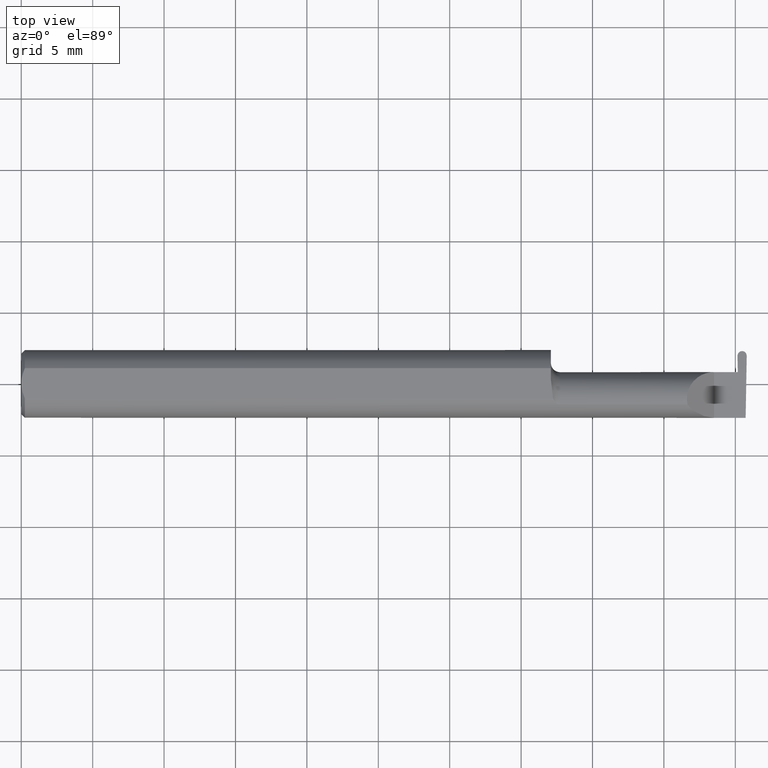
[diagram: clean part render]
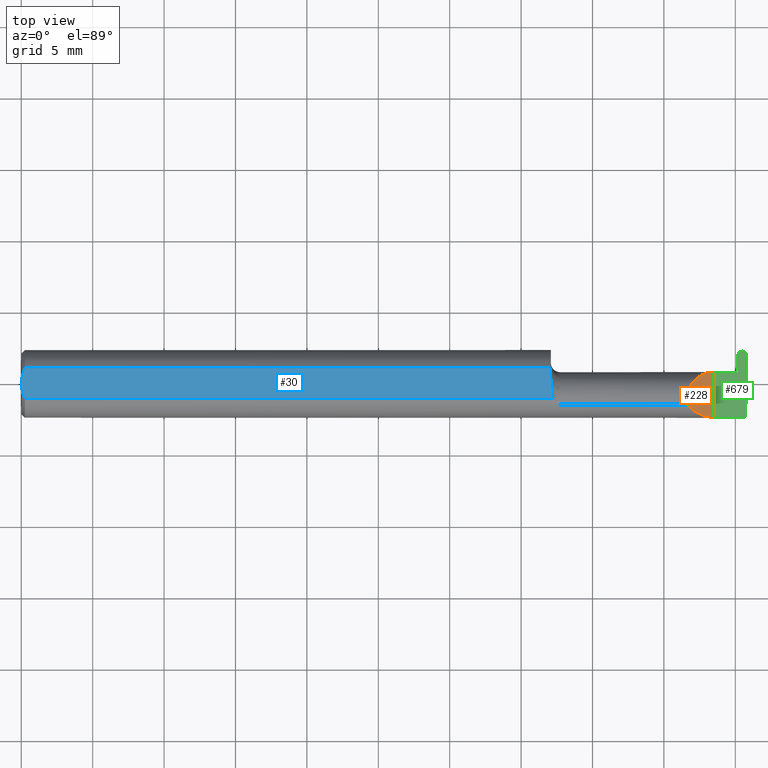
[diagram: same view with three faces highlighted in distinct colors, each labeled with its STEP entity id]
A machine part, top view with three faces highlighted in distinct colors.
Their STEP definitions:

[orange] entity #228 — the highlighted planar face has unit normal (-0.7071, 0, -0.7071).
#3 = EDGE_CURVE ( 'NONE', #436, #101, #521, .T. ) ;
#61 = VECTOR ( 'NONE', #393, 39.37007874015748143 ) ;
#70 = FACE_OUTER_BOUND ( 'NONE', #484, .T. ) ;
#82 = ORIENTED_EDGE ( 'NONE', *, *, #234, .T. ) ;
#86 = CARTESIAN_POINT ( 'NONE',  ( 1.910000000000000142, 0.03239999999999998437, 6.613092715395735816E-17 ) ) ;
#101 = VERTEX_POINT ( 'NONE', #499 ) ;
#143 = CARTESIAN_POINT ( 'NONE',  ( 1.910000000000000142, -0.09360000000000005815, 1.102182119232621301E-17 ) ) ;
#179 = CARTESIAN_POINT ( 'NONE',  ( 1.854690286057536941, -0.08092595952420821026, 0.05530971394246249340 ) ) ;
#213 = CARTESIAN_POINT ( 'NONE',  ( 1.910000000000000142, 0.03239999999999998437, 6.613092715395735816E-17 ) ) ;
#214 = EDGE_CURVE ( 'NONE', #101, #460, #270, .T. ) ;
#222 = DIRECTION ( 'NONE',  ( -0.7071067811865507924, 0.000000000000000000, 0.7071067811865441310 ) ) ;
#228 = ADVANCED_FACE ( 'NONE', ( #70 ), #333, .F. ) ;
#234 = EDGE_CURVE ( 'NONE', #436, #460, #458, .T. ) ;
#270 =( BOUNDED_CURVE ( )  B_SPLINE_CURVE ( 3, ( #501, #448, #673, #213 ),
 .UNSPECIFIED., .F., .T. ) 
 B_SPLINE_CURVE_WITH_KNOTS ( ( 4, 4 ),
 ( 6.074922494366330916, 7.853981633974482790 ),
 .UNSPECIFIED. ) 
 CURVE ( )  GEOMETRIC_REPRESENTATION_ITEM ( )  RATIONAL_B_SPLINE_CURVE ( ( 1.000000000000000000, 0.7531850099525148057, 0.7531850099525148057, 1.000000000000000000 ) ) 
 REPRESENTATION_ITEM ( '' )  );
#287 = CARTESIAN_POINT ( 'NONE',  ( 1.910000000000000142, -0.2500000000000000555, 1.102182119232621301E-17 ) ) ;
#333 = PLANE ( 'NONE',  #496 ) ;
#346 = CARTESIAN_POINT ( 'NONE',  ( 1.910000000000000142, -0.2500000000000000555, 1.102182119232621301E-17 ) ) ;
#393 = DIRECTION ( 'NONE',  ( -0.000000000000000000, 1.000000000000000000, -0.000000000000000000 ) ) ;
#436 = VERTEX_POINT ( 'NONE', #143 ) ;
#448 = CARTESIAN_POINT ( 'NONE',  ( 1.825958805822864628, -0.007655250284932078528, 0.08404119417713461215 ) ) ;
#458 = LINE ( 'NONE', #287, #61 ) ;
#460 = VERTEX_POINT ( 'NONE', #86 ) ;
#476 = CARTESIAN_POINT ( 'NONE',  ( 1.880893035518782730, -0.09359999999999997489, 0.02910696448121682239 ) ) ;
#484 = EDGE_LOOP ( 'NONE', ( #528, #690, #82 ) ) ;
#496 = AXIS2_PLACEMENT_3D ( 'NONE', #346, #658, #222 ) ;
#499 = CARTESIAN_POINT ( 'NONE',  ( 1.836620632051321200, -0.05810704225352102820, 0.07337936794867834511 ) ) ;
#501 = CARTESIAN_POINT ( 'NONE',  ( 1.836620632051321200, -0.05810704225352102820, 0.07337936794867834511 ) ) ;
#521 =( BOUNDED_CURVE ( )  B_SPLINE_CURVE ( 3, ( #573, #476, #179, #522 ),
 .UNSPECIFIED., .F., .T. ) 
 B_SPLINE_CURVE_WITH_KNOTS ( ( 4, 4 ),
 ( 4.712388980384689674, 5.613420356061720184 ),
 .UNSPECIFIED. ) 
 CURVE ( )  GEOMETRIC_REPRESENTATION_ITEM ( )  RATIONAL_B_SPLINE_CURVE ( ( 1.000000000000000000, 0.9334817841311873199, 0.9334817841311873199, 1.000000000000000000 ) ) 
 REPRESENTATION_ITEM ( '' )  );
#522 = CARTESIAN_POINT ( 'NONE',  ( 1.836620632051321200, -0.05810704225352102820, 0.07337936794867834511 ) ) ;
#528 = ORIENTED_EDGE ( 'NONE', *, *, #214, .F. ) ;
#573 = CARTESIAN_POINT ( 'NONE',  ( 1.910000000000000142, -0.09360000000000005815, 1.102182119232621301E-17 ) ) ;
#658 = DIRECTION ( 'NONE',  ( -0.7071067811865442421, 0.000000000000000000, -0.7071067811865509034 ) ) ;
#673 = CARTESIAN_POINT ( 'NONE',  ( 1.858433946715231100, 0.03239999999999999131, 0.05156605328476845940 ) ) ;
#690 = ORIENTED_EDGE ( 'NONE', *, *, #3, .F. ) ;

[blue] entity #30 — the highlighted planar face has unit normal (0, 0, 1).
#8 = CARTESIAN_POINT ( 'NONE',  ( 0.000000000000000000, 0.000000000000000000, 0.08359999999999991049 ) ) ;
#17 = CARTESIAN_POINT ( 'NONE',  ( 0.000000000000000000, 0.000000000000000000, 0.08359999999999991049 ) ) ;
#21 = VERTEX_POINT ( 'NONE', #227 ) ;
#30 = ADVANCED_FACE ( 'NONE', ( #413 ), #240, .T. ) ;
#45 = LINE ( 'NONE', #531, #63 ) ;
#63 = VECTOR ( 'NONE', #692, 39.37007874015748143 ) ;
#66 = DIRECTION ( 'NONE',  ( -3.318744227790140248E-17, 1.000000000000000000, 0.000000000000000000 ) ) ;
#78 = EDGE_CURVE ( 'NONE', #581, #233, #408, .T. ) ;
#79 = EDGE_LOOP ( 'NONE', ( #601, #339, #545, #570, #532, #557 ) ) ;
#110 = CARTESIAN_POINT ( 'NONE',  ( 1.461463898467976863, -0.005727447913487270295, 0.08359999999999991049 ) ) ;
#122 = CARTESIAN_POINT ( 'NONE',  ( 0.0009807498324118613890, 0.01453516766257752398, 0.08359999999999992437 ) ) ;
#151 = CARTESIAN_POINT ( 'NONE',  ( 2.387527623501553705E-17, -0.01462709520273675068, 0.08359999999999991049 ) ) ;
#161 = CARTESIAN_POINT ( 'NONE',  ( 1.459999999999999964, 0.01227294415283370320, 0.08359999999999991049 ) ) ;
#185 = B_SPLINE_CURVE_WITH_KNOTS ( 'NONE', 3,
 ( #617, #661, #122, #343, #621, #279 ),
 .UNSPECIFIED., .F., .F.,
 ( 4, 2, 4 ),
 ( 0.001744210492668864416, 0.002295110172257193264, 0.002846009851845522111 ),
 .UNSPECIFIED. ) ;
#202 = CARTESIAN_POINT ( 'NONE',  ( 0.01000000000000016674, -0.04209513035969864037, 0.08359999999999988274 ) ) ;
#227 = CARTESIAN_POINT ( 'NONE',  ( 0.01000000000000016674, 0.04209513035969864037, 0.08359999999999988274 ) ) ;
#231 = VECTOR ( 'NONE', #498, 39.37007874015748143 ) ;
#233 = VERTEX_POINT ( 'NONE', #17 ) ;
#237 = VERTEX_POINT ( 'NONE', #161 ) ;
#240 = PLANE ( 'NONE',  #440 ) ;
#252 = B_SPLINE_CURVE_WITH_KNOTS ( 'NONE', 3,
 ( #509, #449, #613, #110, #657, #326 ),
 .UNSPECIFIED., .F., .F.,
 ( 4, 2, 4 ),
 ( 0.009672910729349521591, 0.01035804079918429231, 0.01104317086901906303 ),
 .UNSPECIFIED. ) ;
#263 = CARTESIAN_POINT ( 'NONE',  ( 1.459999999999999964, 0.04209513035969864037, 0.08359999999999988274 ) ) ;
#279 = CARTESIAN_POINT ( 'NONE',  ( 0.01000000000000016674, 0.04209513035969864037, 0.08359999999999988274 ) ) ;
#288 = CARTESIAN_POINT ( 'NONE',  ( 2.191425808082400728, 0.09360000000000005815, 0.08359999999999991049 ) ) ;
#297 = VERTEX_POINT ( 'NONE', #606 ) ;
#303 = EDGE_CURVE ( 'NONE', #233, #21, #185, .T. ) ;
#326 = CARTESIAN_POINT ( 'NONE',  ( 1.459999999999999964, 0.01227294415283370320, 0.08359999999999991049 ) ) ;
#335 = EDGE_CURVE ( 'NONE', #237, #597, #566, .T. ) ;
#339 = ORIENTED_EDGE ( 'NONE', *, *, #689, .T. ) ;
#343 = CARTESIAN_POINT ( 'NONE',  ( 0.004492168231814808177, 0.02859366993844194779, 0.08359999999999991049 ) ) ;
#369 = EDGE_CURVE ( 'NONE', #581, #297, #45, .T. ) ;
#379 = VECTOR ( 'NONE', #66, 39.37007874015748143 ) ;
#389 = LINE ( 'NONE', #616, #231 ) ;
#408 = B_SPLINE_CURVE_WITH_KNOTS ( 'NONE', 3,
 ( #202, #489, #151, #8 ),
 .UNSPECIFIED., .F., .F.,
 ( 4, 4 ),
 ( 0.0006429768761302093617, 0.001744210492668864416 ),
 .UNSPECIFIED. ) ;
#413 = FACE_OUTER_BOUND ( 'NONE', #79, .T. ) ;
#434 = CARTESIAN_POINT ( 'NONE',  ( 0.01000000000000016674, -0.04209513035969864037, 0.08359999999999988274 ) ) ;
#440 = AXIS2_PLACEMENT_3D ( 'NONE', #288, #696, #562 ) ;
#449 = CARTESIAN_POINT ( 'NONE',  ( 1.466082007218903360, -0.03301619840524119831, 0.08359999999999991049 ) ) ;
#489 = CARTESIAN_POINT ( 'NONE',  ( 0.004072204388638868758, -0.02891446873729324601, 0.08359999999999991049 ) ) ;
#498 = DIRECTION ( 'NONE',  ( -1.000000000000000000, -0.000000000000000000, -0.000000000000000000 ) ) ;
#509 = CARTESIAN_POINT ( 'NONE',  ( 1.466129652885479473, -0.04209513035970117306, 0.08359999999999991049 ) ) ;
#531 = CARTESIAN_POINT ( 'NONE',  ( 0.000000000000000000, -0.04209513035969864037, 0.08359999999999988274 ) ) ;
#532 = ORIENTED_EDGE ( 'NONE', *, *, #303, .F. ) ;
#545 = ORIENTED_EDGE ( 'NONE', *, *, #335, .T. ) ;
#557 = ORIENTED_EDGE ( 'NONE', *, *, #78, .F. ) ;
#560 = CARTESIAN_POINT ( 'NONE',  ( 1.459999999999999964, 0.09360000000000004428, 0.08359999999999991049 ) ) ;
#562 = DIRECTION ( 'NONE',  ( 1.000000000000000000, 0.000000000000000000, -0.000000000000000000 ) ) ;
#566 = LINE ( 'NONE', #560, #379 ) ;
#570 = ORIENTED_EDGE ( 'NONE', *, *, #649, .T. ) ;
#581 = VERTEX_POINT ( 'NONE', #434 ) ;
#597 = VERTEX_POINT ( 'NONE', #263 ) ;
#601 = ORIENTED_EDGE ( 'NONE', *, *, #369, .T. ) ;
#606 = CARTESIAN_POINT ( 'NONE',  ( 1.466129652885479473, -0.04209513035970117306, 0.08359999999999991049 ) ) ;
#613 = CARTESIAN_POINT ( 'NONE',  ( 1.464570820222980130, -0.02392027542784319616, 0.08359999999999992437 ) ) ;
#616 = CARTESIAN_POINT ( 'NONE',  ( 0.000000000000000000, 0.04209513035969864037, 0.08359999999999988274 ) ) ;
#617 = CARTESIAN_POINT ( 'NONE',  ( 0.000000000000000000, 0.000000000000000000, 0.08359999999999991049 ) ) ;
#621 = CARTESIAN_POINT ( 'NONE',  ( 0.007036739039485840133, 0.03550621559607060329, 0.08359999999999991049 ) ) ;
#649 = EDGE_CURVE ( 'NONE', #597, #21, #389, .T. ) ;
#657 = CARTESIAN_POINT ( 'NONE',  ( 1.460000000000000187, 0.003280657920457280465, 0.08359999999999991049 ) ) ;
#661 = CARTESIAN_POINT ( 'NONE',  ( 2.476070721796526867E-17, 0.007317304829308955878, 0.08359999999999991049 ) ) ;
#689 = EDGE_CURVE ( 'NONE', #297, #237, #252, .T. ) ;
#692 = DIRECTION ( 'NONE',  ( 1.000000000000000000, 0.000000000000000000, 0.000000000000000000 ) ) ;
#696 = DIRECTION ( 'NONE',  ( 0.000000000000000000, 0.000000000000000000, 1.000000000000000000 ) ) ;

[green] entity #679 — the highlighted planar face has unit normal (-0, 0, -1).
#6 = ORIENTED_EDGE ( 'NONE', *, *, #169, .F. ) ;
#14 = CARTESIAN_POINT ( 'NONE',  ( 1.994909003141931425, 0.09040000000000000813, -9.406295376684357008E-19 ) ) ;
#19 = CARTESIAN_POINT ( 'NONE',  ( 1.974475153926879667, 0.07741385304294044756, 0.000000000000000000 ) ) ;
#20 = CARTESIAN_POINT ( 'NONE',  ( 1.975260873654413052, 0.03239999999999999825, 0.000000000000000000 ) ) ;
#54 = CARTESIAN_POINT ( 'NONE',  ( 1.999986840374342822, 0.07677130609030106967, 0.000000000000000000 ) ) ;
#55 = VERTEX_POINT ( 'NONE', #463 ) ;
#59 = EDGE_CURVE ( 'NONE', #244, #586, #675, .T. ) ;
#61 = VECTOR ( 'NONE', #393, 39.37007874015748143 ) ;
#86 = CARTESIAN_POINT ( 'NONE',  ( 1.910000000000000142, 0.03239999999999998437, 6.613092715395735816E-17 ) ) ;
#92 = EDGE_LOOP ( 'NONE', ( #684, #697, #221, #512, #638, #417, #6, #308, #541 ) ) ;
#103 = LINE ( 'NONE', #321, #584 ) ;
#114 = PLANE ( 'NONE',  #330 ) ;
#115 = CARTESIAN_POINT ( 'NONE',  ( 1.969248479888576320, 0.03239999999999999825, 0.000000000000000000 ) ) ;
#121 = CARTESIAN_POINT ( 'NONE',  ( 2.000126064110226753, 0.08474742857719365363, -1.579535239246384574E-18 ) ) ;
#139 = DIRECTION ( 'NONE',  ( 1.000000000000000000, 3.318744227790140248E-17, 0.000000000000000000 ) ) ;
#141 = CARTESIAN_POINT ( 'NONE',  ( 1.979564206858069220, 0.09040000000000021629, 9.406295376684195230E-19 ) ) ;
#143 = CARTESIAN_POINT ( 'NONE',  ( 1.910000000000000142, -0.09360000000000005815, 1.102182119232621301E-17 ) ) ;
#160 = LINE ( 'NONE', #19, #451 ) ;
#165 = DIRECTION ( 'NONE',  ( -0.01745240643727524049, 0.9998476951563914916, -0.000000000000000000 ) ) ;
#166 = LINE ( 'NONE', #20, #518 ) ;
#167 = CARTESIAN_POINT ( 'NONE',  ( 2.000000000000000000, -0.2500000000000000555, 0.000000000000000000 ) ) ;
#169 = EDGE_CURVE ( 'NONE', #55, #436, #103, .T. ) ;
#172 = CARTESIAN_POINT ( 'NONE',  ( 1.987408188690569011, 0.09039999999999999425, 0.000000000000000000 ) ) ;
#174 = VECTOR ( 'NONE', #500, 39.37007874015747433 ) ;
#184 = VERTEX_POINT ( 'NONE', #54 ) ;
#187 = CARTESIAN_POINT ( 'NONE',  ( 1.975260873654413052, 0.03239999999999999825, 0.000000000000000000 ) ) ;
#215 = CARTESIAN_POINT ( 'NONE',  ( 1.999986840374342822, 0.07677130609030106967, 0.000000000000000000 ) ) ;
#216 = CARTESIAN_POINT ( 'NONE',  ( 1.987065021309431190, 0.09039999999999999425, 0.000000000000000000 ) ) ;
#221 = ORIENTED_EDGE ( 'NONE', *, *, #644, .F. ) ;
#234 = EDGE_CURVE ( 'NONE', #436, #460, #458, .T. ) ;
#242 = LINE ( 'NONE', #422, #243 ) ;
#243 = VECTOR ( 'NONE', #139, 39.37007874015748143 ) ;
#244 = VERTEX_POINT ( 'NONE', #216 ) ;
#258 = VERTEX_POINT ( 'NONE', #610 ) ;
#261 =( BOUNDED_CURVE ( )  B_SPLINE_CURVE ( 3, ( #215, #121, #14, #172 ),
 .UNSPECIFIED., .F., .T. ) 
 B_SPLINE_CURVE_WITH_KNOTS ( ( 4, 4 ),
 ( 1.672436806532649367, 3.247686724355377752 ),
 .UNSPECIFIED. ) 
 CURVE ( )  GEOMETRIC_REPRESENTATION_ITEM ( )  RATIONAL_B_SPLINE_CURVE ( ( 1.000000000000000000, 0.8036869647627060687, 0.8036869647627060687, 1.000000000000000000 ) ) 
 REPRESENTATION_ITEM ( '' )  );
#281 = DIRECTION ( 'NONE',  ( -1.224646799147358877E-16, 0.000000000000000000, -1.000000000000000000 ) ) ;
#287 = CARTESIAN_POINT ( 'NONE',  ( 1.910000000000000142, -0.2500000000000000555, 1.102182119232621301E-17 ) ) ;
#304 = CARTESIAN_POINT ( 'NONE',  ( 1.987065021309431190, 0.09039999999999999425, 0.000000000000000000 ) ) ;
#308 = ORIENTED_EDGE ( 'NONE', *, *, #656, .F. ) ;
#318 =( BOUNDED_CURVE ( )  B_SPLINE_CURVE ( 3, ( #304, #141, #677, #475 ),
 .UNSPECIFIED., .F., .F. ) 
 B_SPLINE_CURVE_WITH_KNOTS ( ( 4, 4 ),
 ( 6.177091236413978947, 7.752341154236730425 ),
 .UNSPECIFIED. ) 
 CURVE ( )  GEOMETRIC_REPRESENTATION_ITEM ( )  RATIONAL_B_SPLINE_CURVE ( ( 1.000000000000000000, 0.8036869647627007396, 0.8036869647627007396, 1.000000000000000000 ) ) 
 REPRESENTATION_ITEM ( '' )  );
#321 = CARTESIAN_POINT ( 'NONE',  ( 2.999519565323742037E-32, -0.09359999999999998876, 2.449293598294716768E-16 ) ) ;
#322 = VERTEX_POINT ( 'NONE', #115 ) ;
#327 = EDGE_CURVE ( 'NONE', #322, #445, #166, .T. ) ;
#330 = AXIS2_PLACEMENT_3D ( 'NONE', #167, #281, #453 ) ;
#337 = LINE ( 'NONE', #396, #174 ) ;
#355 = VECTOR ( 'NONE', #623, 39.37007874015748143 ) ;
#364 = EDGE_CURVE ( 'NONE', #460, #322, #242, .T. ) ;
#393 = DIRECTION ( 'NONE',  ( -0.000000000000000000, 1.000000000000000000, -0.000000000000000000 ) ) ;
#396 = CARTESIAN_POINT ( 'NONE',  ( 1.999998056073120534, 0.07741385304294044756, 0.000000000000000000 ) ) ;
#409 = CARTESIAN_POINT ( 'NONE',  ( -3.937007874019685528E-05, 0.09039999999999999425, 0.000000000000000000 ) ) ;
#417 = ORIENTED_EDGE ( 'NONE', *, *, #234, .F. ) ;
#420 = EDGE_CURVE ( 'NONE', #244, #258, #318, .T. ) ;
#422 = CARTESIAN_POINT ( 'NONE',  ( 1.459999999999999964, 0.03239999999999997743, 6.613092715395735816E-17 ) ) ;
#436 = VERTEX_POINT ( 'NONE', #143 ) ;
#445 = VERTEX_POINT ( 'NONE', #187 ) ;
#451 = VECTOR ( 'NONE', #165, 39.37007874015747433 ) ;
#453 = DIRECTION ( 'NONE',  ( -1.000000000000000000, 0.000000000000000000, 1.224646799147358877E-16 ) ) ;
#458 = LINE ( 'NONE', #287, #61 ) ;
#460 = VERTEX_POINT ( 'NONE', #86 ) ;
#463 = CARTESIAN_POINT ( 'NONE',  ( 1.997012998164632958, -0.09360000000000001652, 0.000000000000000000 ) ) ;
#475 = CARTESIAN_POINT ( 'NONE',  ( 1.974486369625657378, 0.07677130609030106967, 0.000000000000000000 ) ) ;
#500 = DIRECTION ( 'NONE',  ( -0.01745240643727442170, -0.9998476951563914916, 0.000000000000000000 ) ) ;
#512 = ORIENTED_EDGE ( 'NONE', *, *, #327, .F. ) ;
#518 = VECTOR ( 'NONE', #568, 39.37007874015748143 ) ;
#541 = ORIENTED_EDGE ( 'NONE', *, *, #670, .T. ) ;
#549 = DIRECTION ( 'NONE',  ( -1.000000000000000000, -0.000000000000000000, -0.000000000000000000 ) ) ;
#568 = DIRECTION ( 'NONE',  ( 1.000000000000000000, 7.099522513569547654E-16, -0.000000000000000000 ) ) ;
#584 = VECTOR ( 'NONE', #549, 39.37007874015748143 ) ;
#586 = VERTEX_POINT ( 'NONE', #587 ) ;
#587 = CARTESIAN_POINT ( 'NONE',  ( 1.987408188690569011, 0.09039999999999999425, 0.000000000000000000 ) ) ;
#605 = FACE_OUTER_BOUND ( 'NONE', #92, .T. ) ;
#610 = CARTESIAN_POINT ( 'NONE',  ( 1.974486369625657378, 0.07677130609030106967, 0.000000000000000000 ) ) ;
#623 = DIRECTION ( 'NONE',  ( 1.000000000000000000, -0.000000000000000000, -0.000000000000000000 ) ) ;
#638 = ORIENTED_EDGE ( 'NONE', *, *, #364, .F. ) ;
#644 = EDGE_CURVE ( 'NONE', #445, #258, #160, .T. ) ;
#656 = EDGE_CURVE ( 'NONE', #184, #55, #337, .T. ) ;
#670 = EDGE_CURVE ( 'NONE', #184, #586, #261, .T. ) ;
#675 = LINE ( 'NONE', #409, #355 ) ;
#677 = CARTESIAN_POINT ( 'NONE',  ( 1.974347145889773225, 0.08474742857719380629, 1.579535239246386693E-18 ) ) ;
#679 = ADVANCED_FACE ( 'NONE', ( #605 ), #114, .F. ) ;
#684 = ORIENTED_EDGE ( 'NONE', *, *, #59, .F. ) ;
#697 = ORIENTED_EDGE ( 'NONE', *, *, #420, .T. ) ;